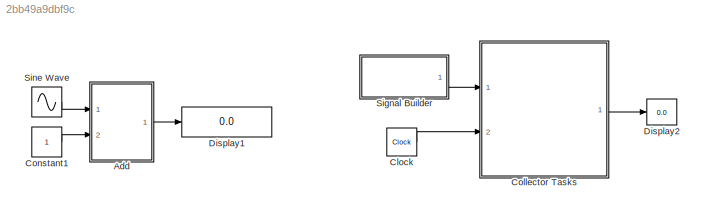
MODEL slx_2bb49a9dbf9c
KIND model
CONFIG AbsTol = auto
CONFIG EnableMultiTasking = off
CONFIG FixedStep = auto
CONFIG MaxStep = auto
CONFIG MinStep = auto
CONFIG RelTol = 1e-3
CONFIG SampleTimeConstraint = Unconstrained
CONFIG Solver = VariableStepAuto
CONFIG SolverName = VariableStepAuto
CONFIG StartTime = 0.0
CONFIG StopTime = 10.0
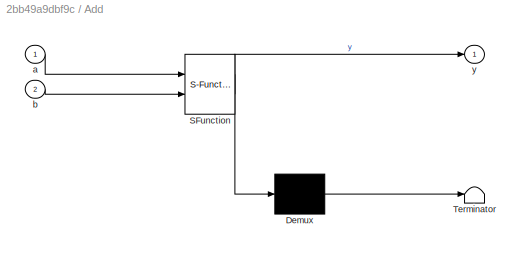
BLOCK [SubSystem] Add
  ErrorFcn = Stateflow.Translate.translate
  PermitHierarchicalResolution = ExplicitOnly
  Ports = [2, 1]
  RequestExecContextInheritance = off
  SFBlockType = MATLAB Function
  TreatAsAtomicUnit = on
BLOCK [Demux] Add/ Demux 
  Outputs = 1
  Ports = [1, 1]
BLOCK [S-Function] Add/ SFunction 
  EnableBusSupport = on
  FunctionName = sf_sfun
  PortCounts = [2 2]
  Ports = [2, 2]
  SFcnIsStateOwnerBlock = off
  SFunctionDeploymentMode = off
  Tag = Stateflow S-Function tasks 2
BLOCK [Terminator] Add/ Terminator 
BLOCK [Inport] Add/a
  IconDisplay = Port number
BLOCK [Inport] Add/b
  IconDisplay = Port number
  Port = 2
BLOCK [Outport] Add/y
  IconDisplay = Port number
BLOCK [Clock] Clock
  Decimation = 1
  DisplayTime = on
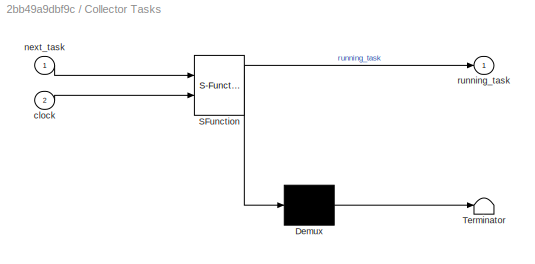
BLOCK [SubSystem] Collector Tasks
  ErrorFcn = Stateflow.Translate.translate
  PermitHierarchicalResolution = ExplicitOnly
  Ports = [2, 1]
  RequestExecContextInheritance = off
  SFBlockType = Chart
  TreatAsAtomicUnit = on
BLOCK [Demux] Collector Tasks/ Demux 
  Outputs = 1
  Ports = [1, 1]
BLOCK [S-Function] Collector Tasks/ SFunction 
  EnableBusSupport = on
  FunctionName = sf_sfun
  PortCounts = [2 2]
  Ports = [2, 2]
  SFcnIsStateOwnerBlock = off
  SFunctionDeploymentMode = off
  Tag = Stateflow S-Function tasks 3
BLOCK [Terminator] Collector Tasks/ Terminator 
BLOCK [Inport] Collector Tasks/clock
  IconDisplay = Port number
  Port = 2
BLOCK [Inport] Collector Tasks/next_task
  IconDisplay = Port number
BLOCK [Outport] Collector Tasks/running_task
  IconDisplay = Port number
BLOCK [Constant] Constant1
BLOCK [Display] Display1
  Decimation = 1
  Ports = [1]
BLOCK [Display] Display2
  Decimation = 1
  Ports = [1]
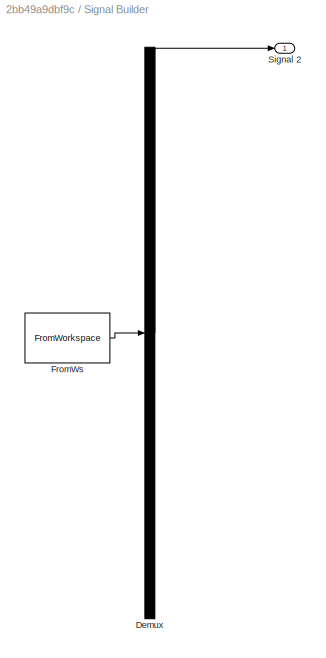
BLOCK [SubSystem] Signal Builder
  ClipboardFcn = sigbuilder_block('clipboard');
  CloseFcn = sigbuilder_block('close');
  ContinueFcn = sigbuilder_block('continue');
  CopyFcn = sigbuilder_block('copy');
  DeleteFcn = sigbuilder_block('delete');
  LoadFcn = sigbuilder_block('load');
  MaskHideContents = on
  ModelCloseFcn = sigbuilder_block('modelClose');
  NameChangeFcn = sigbuilder_block('namechange');
  OpenFcn = sigbuilder_block('open',[327 53.4 550.8 361.2 ]);
  PauseFcn = sigbuilder_block('pause');
  Ports = [0, 1]
  PreSaveFcn = sigbuilder_block('preSave');
  RequestExecContextInheritance = off
  StartFcn = sigbuilder_block('start');
  StopFcn = sigbuilder_block('stop');
  Tag = STV Subsys
BLOCK [Demux] Signal Builder/Demux
  Outputs = 1
  Ports = [1, 1]
  Tag = STV Demux
BLOCK [FromWorkspace] Signal Builder/FromWs
  SampleTime = 0
  Tag = STV FromWs
  VariableName = tuvar
  ZeroCross = on
BLOCK [Outport] Signal Builder/Signal 2
  IconDisplay = Port number
  Tag = STV Outport
BLOCK [Sin] Sine Wave
  Amplitude = 10
  Ports = [0, 1]
  SampleTime = 0
LINE Add:1 -> Display1:1
LINE Clock:1 -> Collector Tasks:2
LINE Collector Tasks:1 -> Display2:1
LINE Constant1:1 -> Add:2
LINE Signal Builder:1 -> Collector Tasks:1
LINE Sine Wave:1 -> Add:1
CHART Add states=1 transitions=1
  STATE_LABEL 'eML_blk_kernel()'
  STATE_LABEL "SCRIPT:\nfunction y = callfoo(a, b)\ny = 0.0;\ncoder.updateBuildInfo('addSourceFiles','matlab.c');\ncoder.cinclude('matlab.h');\ny = coder.ceval('add', a, b);\nend"
CHART Collector Tasks states=5 transitions=7
  STATE_LABEL 'Schedule\n'
  STATE_LABEL 'Idle1\nen:\nrunning_task = 0;\ntimer = clock;\n'
  STATE_LABEL 'Task1\nen:\nrunning_task = 1;\ntimer = clock;\ncost = 3;'
  STATE_LABEL 'Task2\nen:\nrunning_task = 2;\ntimer = clock;\ncost = 5;'
  STATE_LABEL 'usw ...'
